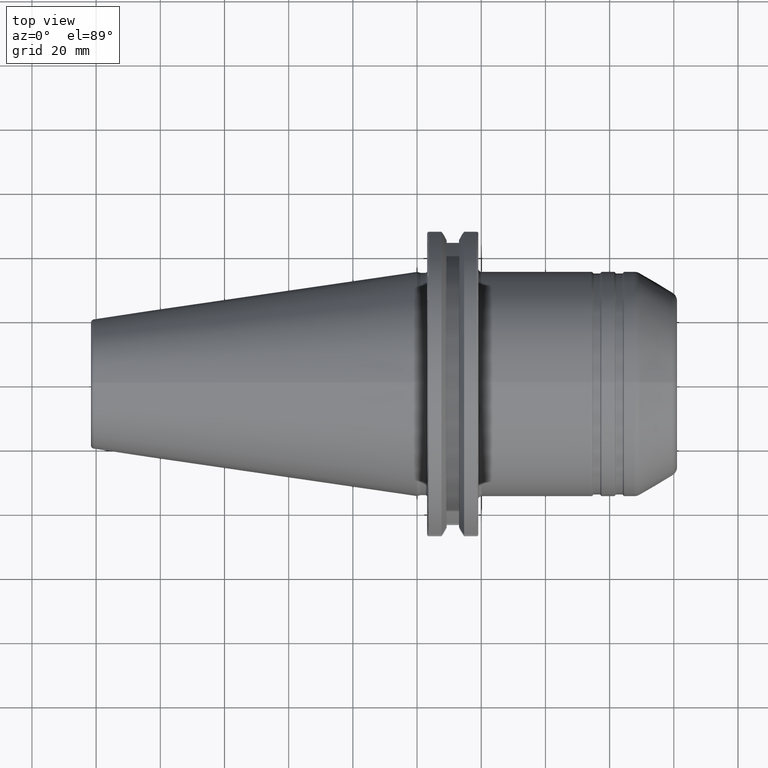
[diagram: clean part render]
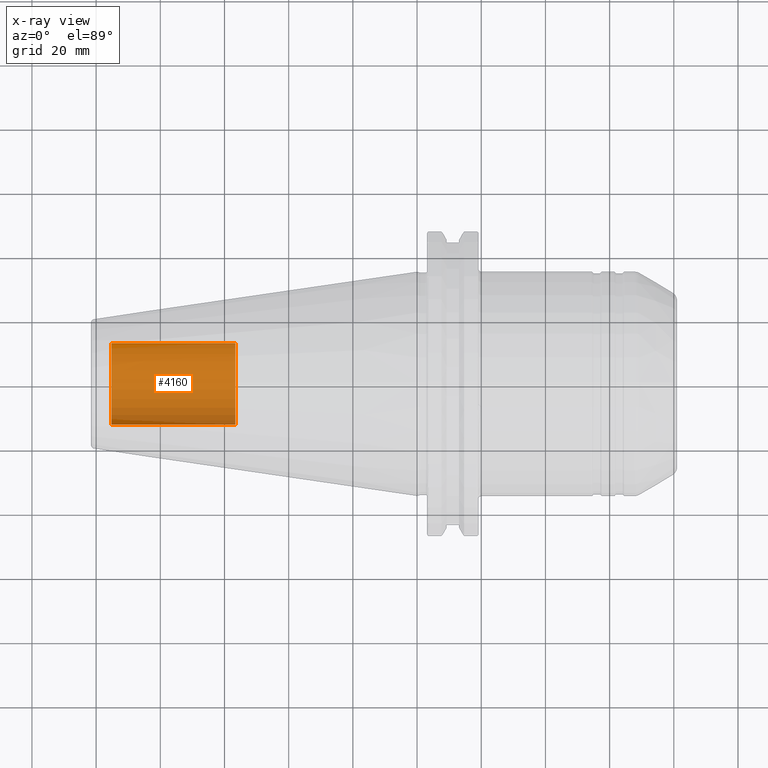
[diagram: x-ray — body ghosted, one internal face saturated and labeled with its STEP entity id]
A machine part, top view, then the same camera in x-ray: the body is ghosted and one INTERNAL B-rep face — a face not visible from any outside direction — is saturated and labeled: STEP entity #4160.
In plain terms, the highlighted cylindrical surface (partial cylindrical patch) has radius 12.7 mm, axis along (-1, 0, 0).
Its self-contained STEP definition (entity closure, byte-faithful):
#4095=CARTESIAN_POINT('',(-9.525E1,0.E0,0.E0));
#4096=DIRECTION('',(1.E0,0.E0,0.E0));
#4097=DIRECTION('',(0.E0,-1.E0,0.E0));
#4098=AXIS2_PLACEMENT_3D('',#4095,#4096,#4097);
#4105=DIRECTION('',(1.E0,0.E0,0.E0));
#4106=VECTOR('',#4105,3.865E1);
#4107=CARTESIAN_POINT('',(-9.525E1,-1.27E1,0.E0));
#4108=LINE('',#4107,#4106);
#4109=DIRECTION('',(1.E0,0.E0,0.E0));
#4110=VECTOR('',#4109,3.865E1);
#4111=CARTESIAN_POINT('',(-9.525E1,1.27E1,0.E0));
#4112=LINE('',#4111,#4110);
#4118=CARTESIAN_POINT('',(-5.66E1,0.E0,0.E0));
#4119=DIRECTION('',(-1.E0,0.E0,0.E0));
#4120=DIRECTION('',(0.E0,1.E0,0.E0));
#4121=AXIS2_PLACEMENT_3D('',#4118,#4119,#4120);
#4133=CARTESIAN_POINT('',(-5.66E1,1.27E1,0.E0));
#4134=CARTESIAN_POINT('',(-5.66E1,-1.27E1,0.E0));
#4135=VERTEX_POINT('',#4133);
#4136=VERTEX_POINT('',#4134);
#4137=CARTESIAN_POINT('',(-9.525E1,1.27E1,0.E0));
#4138=CARTESIAN_POINT('',(-9.525E1,-1.27E1,0.E0));
#4139=VERTEX_POINT('',#4137);
#4140=VERTEX_POINT('',#4138);
#4145=CARTESIAN_POINT('',(-2.108908318961E1,0.E0,0.E0));
#4146=DIRECTION('',(-1.E0,0.E0,0.E0));
#4147=DIRECTION('',(0.E0,1.E0,0.E0));
#4148=AXIS2_PLACEMENT_3D('',#4145,#4146,#4147);
#4149=CYLINDRICAL_SURFACE('',#4148,1.27E1);
#4151=ORIENTED_EDGE('',*,*,#4150,.T.);
#4153=ORIENTED_EDGE('',*,*,#4152,.T.);
#4155=ORIENTED_EDGE('',*,*,#4154,.T.);
#4157=ORIENTED_EDGE('',*,*,#4156,.F.);
#4158=EDGE_LOOP('',(#4151,#4153,#4155,#4157));
#4159=FACE_OUTER_BOUND('',#4158,.F.);
#4160=ADVANCED_FACE('',(#4159),#4149,.F.);
#4099=CIRCLE('',#4098,1.27E1);
#4122=CIRCLE('',#4121,1.27E1);
#4150=EDGE_CURVE('',#4140,#4139,#4099,.T.);
#4152=EDGE_CURVE('',#4139,#4135,#4112,.T.);
#4154=EDGE_CURVE('',#4135,#4136,#4122,.T.);
#4156=EDGE_CURVE('',#4140,#4136,#4108,.T.);